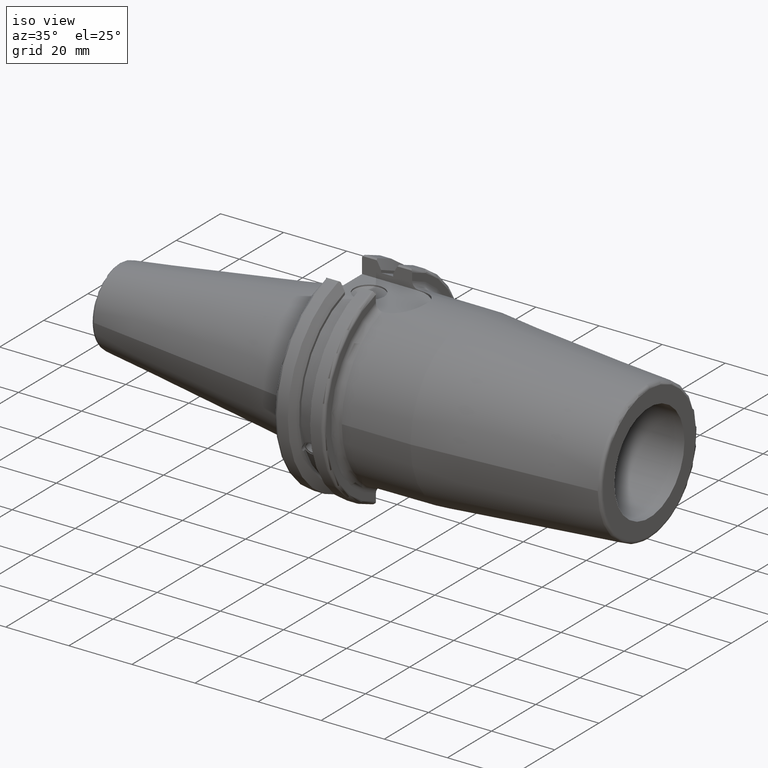
[diagram: clean part render]
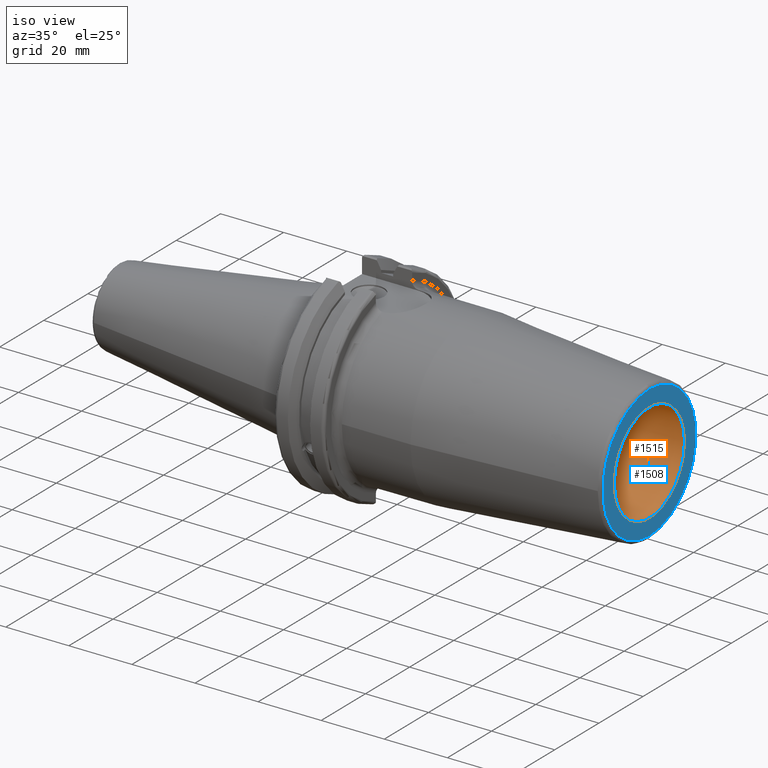
[diagram: same view with the hole feature highlighted: cylindrical wall and planar end face, labeled with their STEP entity ids]
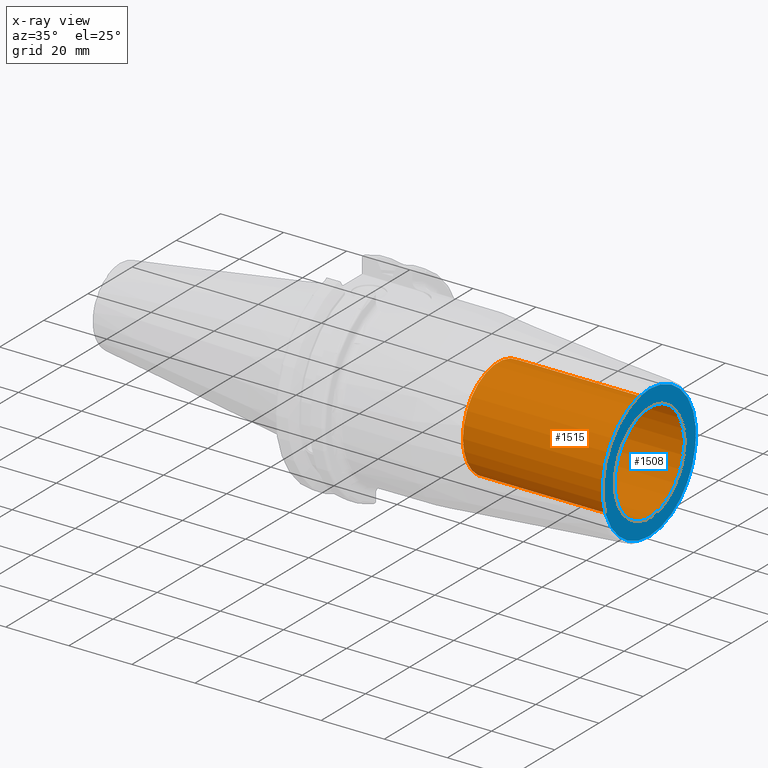
[diagram: x-ray of the same camera — body ghosted, the hole faces saturated]
A machine part, iso view. The highlighted faces form one hole feature of diameter 31.75 mm: the cylindrical wall (entity #1515, orange) and its adjacent planar end face (entity #1508, blue) — they share a circular edge in the B-rep.
The next image is the same camera in x-ray (body ghosted, the hole faces saturated) — the bore reads through the body.
Wall:
#133=FACE_OUTER_BOUND('',#224,.T.);
#224=EDGE_LOOP('',(#1066,#1067,#1068,#1069));
#320=CIRCLE('',#1630,15.875);
#329=CIRCLE('',#1646,15.875);
#397=LINE('',#2500,#483);
#483=VECTOR('',#1875,15.875);
#620=VERTEX_POINT('',#2363);
#636=VERTEX_POINT('',#2499);
#784=EDGE_CURVE('',#620,#620,#320,.T.);
#805=EDGE_CURVE('',#620,#636,#397,.T.);
#806=EDGE_CURVE('',#636,#636,#329,.T.);
#1066=ORIENTED_EDGE('',*,*,#784,.T.);
#1067=ORIENTED_EDGE('',*,*,#805,.T.);
#1068=ORIENTED_EDGE('',*,*,#806,.F.);
#1069=ORIENTED_EDGE('',*,*,#805,.F.);
#1477=CYLINDRICAL_SURFACE('',#1645,15.875);
#1515=ADVANCED_FACE('',(#133),#1477,.F.);
#1630=AXIS2_PLACEMENT_3D('',#2364,#1839,#1840);
#1645=AXIS2_PLACEMENT_3D('',#2498,#1873,#1874);
#1646=AXIS2_PLACEMENT_3D('',#2501,#1876,#1877);
#1839=DIRECTION('center_axis',(1.,0.,0.));
#1840=DIRECTION('ref_axis',(0.,0.,-1.));
#1873=DIRECTION('center_axis',(1.,0.,0.));
#1874=DIRECTION('ref_axis',(0.,1.,0.));
#1875=DIRECTION('',(-1.,0.,0.));
#1876=DIRECTION('center_axis',(1.,0.,0.));
#1877=DIRECTION('ref_axis',(0.,0.,-1.));
#2363=CARTESIAN_POINT('',(100.,-15.875,-1.94412679364642E-15));
#2364=CARTESIAN_POINT('Origin',(100.,0.,0.));
#2498=CARTESIAN_POINT('Origin',(76.,0.,0.));
#2499=CARTESIAN_POINT('',(52.,-15.875,-1.94412679364642E-15));
#2500=CARTESIAN_POINT('',(76.,-15.875,-1.94412679364642E-15));
#2501=CARTESIAN_POINT('Origin',(52.,0.,0.));
End face:
#49=FACE_BOUND('',#214,.T.);
#64=PLANE('',#1629);
#126=FACE_OUTER_BOUND('',#213,.T.);
#213=EDGE_LOOP('',(#1033));
#214=EDGE_LOOP('',(#1034));
#316=CIRCLE('',#1624,21.0756095083418);
#320=CIRCLE('',#1630,15.875);
#617=VERTEX_POINT('',#2353);
#620=VERTEX_POINT('',#2363);
#779=EDGE_CURVE('',#617,#617,#316,.T.);
#784=EDGE_CURVE('',#620,#620,#320,.T.);
#1033=ORIENTED_EDGE('',*,*,#779,.F.);
#1034=ORIENTED_EDGE('',*,*,#784,.F.);
#1508=ADVANCED_FACE('',(#126,#49),#64,.T.);
#1624=AXIS2_PLACEMENT_3D('',#2354,#1826,#1827);
#1629=AXIS2_PLACEMENT_3D('',#2362,#1837,#1838);
#1630=AXIS2_PLACEMENT_3D('',#2364,#1839,#1840);
#1826=DIRECTION('center_axis',(-1.,0.,0.));
#1827=DIRECTION('ref_axis',(0.,-1.,1.83697019872103E-16));
#1837=DIRECTION('center_axis',(1.,0.,0.));
#1838=DIRECTION('ref_axis',(0.,0.,-1.));
#1839=DIRECTION('center_axis',(1.,0.,0.));
#1840=DIRECTION('ref_axis',(0.,0.,-1.));
#2353=CARTESIAN_POINT('',(100.,-2.58101777244703E-15,21.0756095083418));
#2354=CARTESIAN_POINT('Origin',(100.,0.,0.));
#2362=CARTESIAN_POINT('Origin',(100.,15.875,0.));
#2363=CARTESIAN_POINT('',(100.,-15.875,-1.94412679364642E-15));
#2364=CARTESIAN_POINT('Origin',(100.,0.,0.));